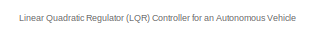
[diagram: root canvas - part 1/3, top center region]
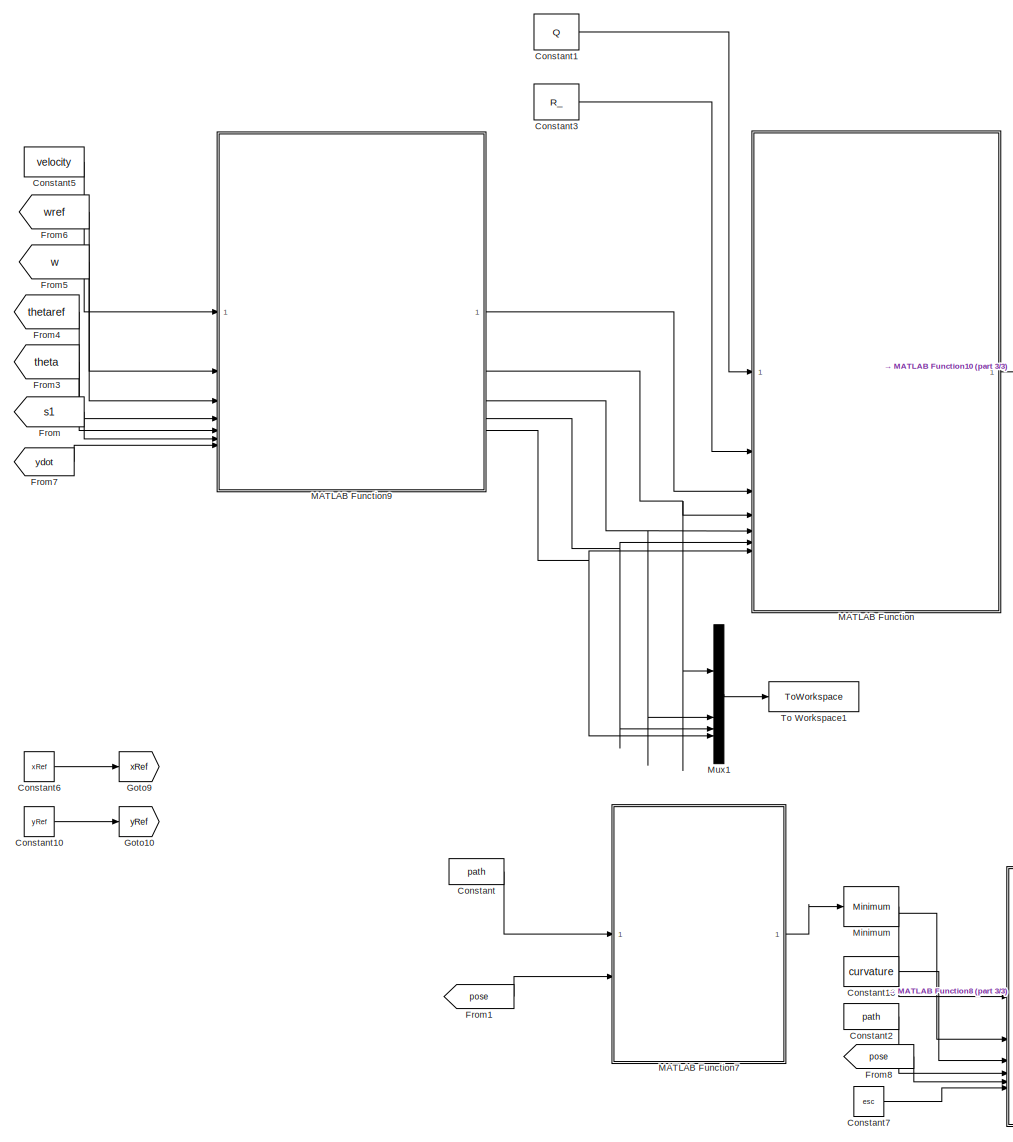
[diagram: root canvas - part 2/3, left side, full height]
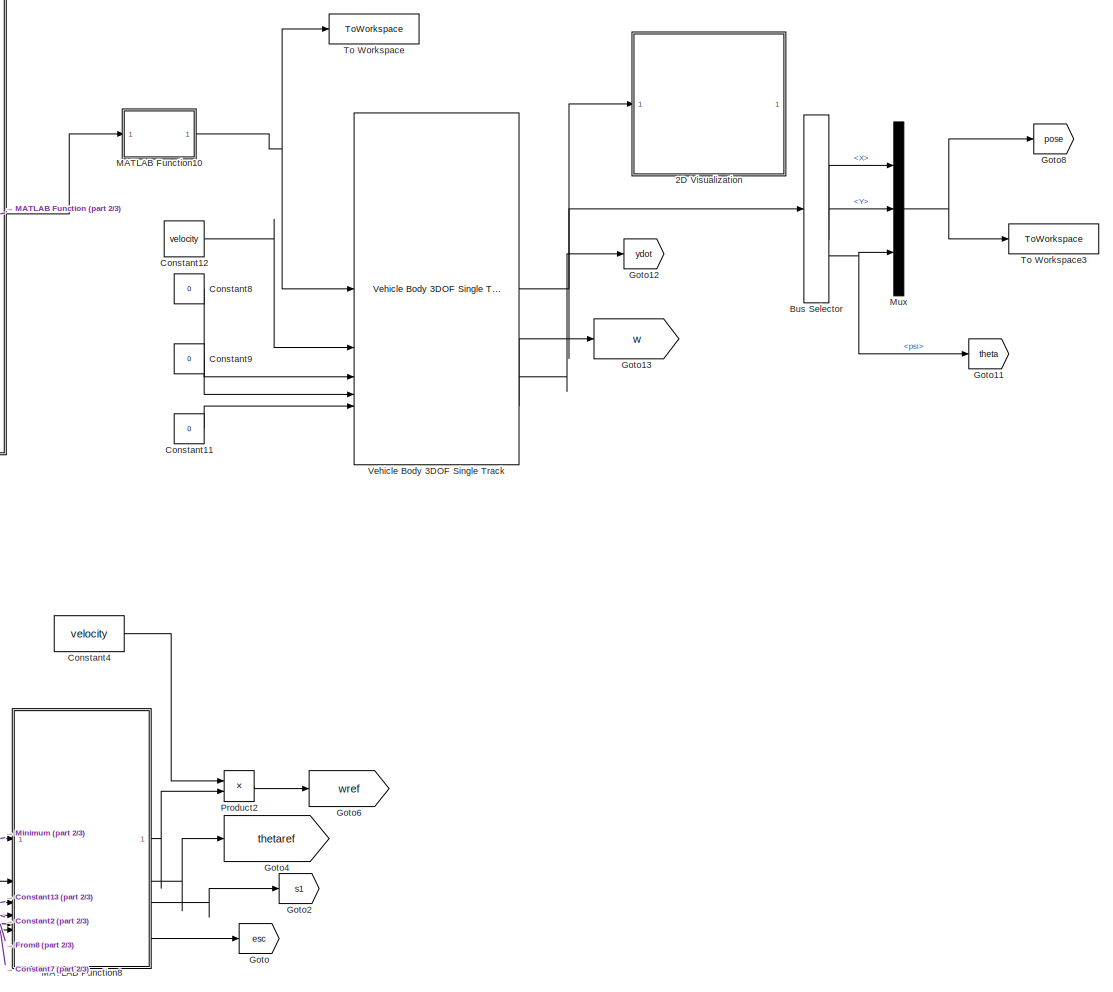
[diagram: root canvas - part 3/3, right side, full height]
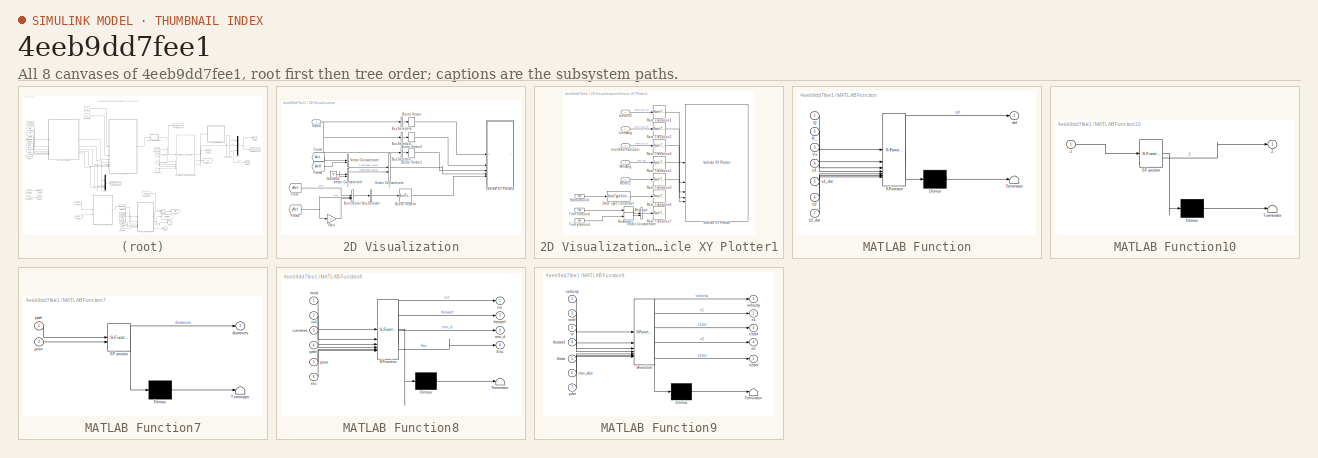
[diagram: thumbnail index - all 8 canvases of the model, root first then tree order]
MODEL slx_4eeb9dd7fee1
KIND model
CONFIG AbsTol = auto
CONFIG EnableMultiTasking = off
CONFIG FixedStep = auto
CONFIG MaxStep = auto
CONFIG MinStep = auto
CONFIG RelTol = 1e-3
CONFIG SampleTimeConstraint = Unconstrained
CONFIG SolverName = ode45
CONFIG StartTime = 0.0
CONFIG StopTime = inf
BLOCK [SubSystem] 2D Visualization
BLOCK [BusCreator] 2D Visualization/Bus Creator
  DisplayOption = bar
  InheritFromInputs = on
  Inputs = 3
BLOCK [BusSelector] 2D Visualization/Bus Selector
  OutputAsBus = on
  OutputSignals = xRef,yRef,signal3
BLOCK [BusSelector] 2D Visualization/Bus Selector1
  OutputAsBus = on
  OutputSignals = InertFrm.Cg.Ang.phi,InertFrm.Cg.Ang.theta,InertFrm.Cg.Ang.psi
BLOCK [BusSelector] 2D Visualization/Bus Selector6
  OutputAsBus = on
  OutputSignals = InertFrm.Geom.Disp.X,InertFrm.Geom.Disp.Y,InertFrm.Geom.Disp.Z
BLOCK [BusSelector] 2D Visualization/Bus Selector7
  OutputAsBus = on
  OutputSignals = InertFrm.Geom.Vel.Xdot,InertFrm.Geom.Vel.Ydot,InertFrm.Geom.Vel.Zdot
BLOCK [BusToVector] 2D Visualization/Bus to Vector
BLOCK [BusToVector] 2D Visualization/Bus to Vector1
BLOCK [BusToVector] 2D Visualization/Bus to Vector2
BLOCK [BusToVector] 2D Visualization/Bus to Vector4
BLOCK [From] 2D Visualization/From
  GotoTag = xRef
BLOCK [From] 2D Visualization/From1
  GotoTag = AnL
BLOCK [From] 2D Visualization/From2
  GotoTag = AnR
BLOCK [From] 2D Visualization/From3
  GotoTag = yRef
BLOCK [Gain] 2D Visualization/Gain
  Gain = 0
BLOCK [Ground] 2D Visualization/Ground3
BLOCK [Inport] 2D Visualization/Inport
BLOCK [Concatenate] 2D Visualization/Vector Concatenate
BLOCK [Concatenate] 2D Visualization/Vector Concatenate1
BLOCK [Concatenate] 2D Visualization/Vector Concatenate2
BLOCK [SubSystem] 2D Visualization/Vehicle XY Plotter1
BLOCK [DataTypeConversion] 2D Visualization/Vehicle XY Plotter1/Data Type Conversion
  OutDataTypeStr = double
  RndMeth = Floor
  SaturateOnIntegerOverflow = off
BLOCK [Inport] 2D Visualization/Vehicle XY Plotter1/InertAng
  Port = 2
BLOCK [Inport] 2D Visualization/Vehicle XY Plotter1/InertXYZ
BLOCK [Inport] 2D Visualization/Vehicle XY Plotter1/InertXdotYdotZdot
  Port = 3
BLOCK [RateTransition] 2D Visualization/Vehicle XY Plotter1/Rate Transition1
  Deterministic = off
  OutPortSampleTime = pltDT
BLOCK [RateTransition] 2D Visualization/Vehicle XY Plotter1/Rate Transition2
  Deterministic = off
  OutPortSampleTime = pltDT
BLOCK [RateTransition] 2D Visualization/Vehicle XY Plotter1/Rate Transition3
  Deterministic = off
  OutPortSampleTime = pltDT
BLOCK [RateTransition] 2D Visualization/Vehicle XY Plotter1/Rate Transition4
  Deterministic = off
  OutPortSampleTime = pltDT
BLOCK [RateTransition] 2D Visualization/Vehicle XY Plotter1/Rate Transition5
  Deterministic = off
  OutPortSampleTime = pltDT
BLOCK [RateTransition] 2D Visualization/Vehicle XY Plotter1/Rate Transition6
  Deterministic = off
  OutPortSampleTime = pltDT
BLOCK [RateTransition] 2D Visualization/Vehicle XY Plotter1/Rate Transition7
  Deterministic = off
  OutPortSampleTime = pltDT
BLOCK [Inport] 2D Visualization/Vehicle XY Plotter1/RefXYZ
  Port = 5
BLOCK [Reshape] 2D Visualization/Vehicle XY Plotter1/Reshape
  OutputDimensionality = Row vector (2-D)
BLOCK [Reshape] 2D Visualization/Vehicle XY Plotter1/Reshape1
  OutputDimensionality = Row vector (2-D)
BLOCK [Ground] 2D Visualization/Vehicle XY Plotter1/Stats Ground
BLOCK [Ground] 2D Visualization/Vehicle XY Plotter1/TireFx Ground
BLOCK [Ground] 2D Visualization/Vehicle XY Plotter1/TireFy Ground
BLOCK [Concatenate] 2D Visualization/Vehicle XY Plotter1/Vector Concatenate
  Mode = Multidimensional array
BLOCK [Reference] 2D Visualization/Vehicle XY Plotter1/Vehicle XY Plotter  REF=vehdynlibviscommon/Vehicle XY Plotter
  SourceBlock = vehdynlibviscommon/Vehicle XY Plotter
  SourceType = Vehicle XY Plotter
BLOCK [Inport] 2D Visualization/Vehicle XY Plotter1/WhlAng
  Port = 4
BLOCK [BusSelector] Bus Selector
  OutputSignals = InertFrm.Cg.Disp.X,InertFrm.Cg.Disp.Y,InertFrm.Cg.Ang.psi
BLOCK [Constant] Constant
  SampleTime = 1/hz
  Value = path
BLOCK [Constant] Constant1
  SampleTime = 1/hz
  Value = Q
BLOCK [Constant] Constant10
  SampleTime = 1/hz
  Value = yRef
BLOCK [Constant] Constant11
  SampleTime = 1/hz
  Value = 0
BLOCK [Constant] Constant12
  SampleTime = 1/hz
  Value = velocity
BLOCK [Constant] Constant13
  SampleTime = 1/hz
  Value = curvature
BLOCK [Constant] Constant2
  SampleTime = 1/hz
  Value = path
BLOCK [Constant] Constant3
  SampleTime = 1/hz
  Value = R_
BLOCK [Constant] Constant4
  SampleTime = 1/hz
  Value = velocity
BLOCK [Constant] Constant5
  SampleTime = 1/hz
  Value = velocity
BLOCK [Constant] Constant6
  SampleTime = 1/hz
  Value = xRef
BLOCK [Constant] Constant7
  SampleTime = 1/hz
  Value = esc
BLOCK [Constant] Constant8
  SampleTime = 1/hz
  Value = 0
BLOCK [Constant] Constant9
  SampleTime = 1/hz
  Value = 0
BLOCK [From] From
  GotoTag = s1
BLOCK [From] From1
  GotoTag = pose
BLOCK [From] From3
  GotoTag = theta
BLOCK [From] From4
  GotoTag = thetaref
BLOCK [From] From5
  GotoTag = w
BLOCK [From] From6
  GotoTag = wref
BLOCK [From] From7
  GotoTag = ydot
BLOCK [From] From8
  GotoTag = pose
BLOCK [Goto] Goto
  GotoTag = esc
BLOCK [Goto] Goto10
  GotoTag = yRef
BLOCK [Goto] Goto11
  GotoTag = theta
BLOCK [Goto] Goto12
  GotoTag = ydot
BLOCK [Goto] Goto13
  GotoTag = w
BLOCK [Goto] Goto2
  GotoTag = s1
BLOCK [Goto] Goto4
  GotoTag = thetaref
BLOCK [Goto] Goto6
  GotoTag = wref
BLOCK [Goto] Goto8
  GotoTag = pose
BLOCK [Goto] Goto9
  GotoTag = xRef
BLOCK [SubSystem] MATLAB Function
  ErrorFcn = Stateflow.Translate.translate
  NameLocation = top
  PermitHierarchicalResolution = ExplicitOnly
  SFBlockType = MATLAB Function
  TreatAsAtomicUnit = on
BLOCK [Demux] MATLAB Function/ Demux 
  Outputs = 1
BLOCK [S-Function] MATLAB Function/ SFunction 
  EnableBusSupport = on
  FunctionName = sf_sfun
  PortCounts = [7 2]
  SFcnIsStateOwnerBlock = off
  SFunctionDeploymentMode = off
  Tag = Stateflow S-Function 2
BLOCK [Terminator] MATLAB Function/ Terminator 
BLOCK [Inport] MATLAB Function/Q
BLOCK [Inport] MATLAB Function/R_
  Port = 2
BLOCK [Inport] MATLAB Function/Vx
  Port = 3
BLOCK [Outport] MATLAB Function/del
BLOCK [Inport] MATLAB Function/e1
  Port = 4
BLOCK [Inport] MATLAB Function/e1_dot
  Port = 5
BLOCK [Inport] MATLAB Function/e2
  Port = 6
BLOCK [Inport] MATLAB Function/e2_dot
  Port = 7
BLOCK [SubSystem] MATLAB Function10
  ErrorFcn = Stateflow.Translate.translate
  LibrarySourceBlock = simulink/User-Defined\nFunctions/MATLAB Function
  PermitHierarchicalResolution = ExplicitOnly
  SFBlockType = MATLAB Function
  TreatAsAtomicUnit = on
BLOCK [Demux] MATLAB Function10/ Demux 
  Outputs = 1
BLOCK [S-Function] MATLAB Function10/ SFunction 
  EnableBusSupport = on
  FunctionName = sf_sfun
  PortCounts = [1 2]
  SFcnIsStateOwnerBlock = off
  SFunctionDeploymentMode = off
  Tag = Stateflow S-Function 11
BLOCK [Terminator] MATLAB Function10/ Terminator 
BLOCK [Outport] MATLAB Function10/Z
BLOCK [Inport] MATLAB Function10/z
BLOCK [SubSystem] MATLAB Function7
  ErrorFcn = Stateflow.Translate.translate
  LibrarySourceBlock = simulink/User-Defined\nFunctions/MATLAB Function
  PermitHierarchicalResolution = ExplicitOnly
  SFBlockType = MATLAB Function
  TreatAsAtomicUnit = on
BLOCK [Demux] MATLAB Function7/ Demux 
  Outputs = 1
BLOCK [S-Function] MATLAB Function7/ SFunction 
  EnableBusSupport = on
  FunctionName = sf_sfun
  PortCounts = [2 2]
  SFcnIsStateOwnerBlock = off
  SFunctionDeploymentMode = off
  Tag = Stateflow S-Function 8
BLOCK [Terminator] MATLAB Function7/ Terminator 
BLOCK [Outport] MATLAB Function7/distances
BLOCK [Inport] MATLAB Function7/path
BLOCK [Inport] MATLAB Function7/pose
  Port = 2
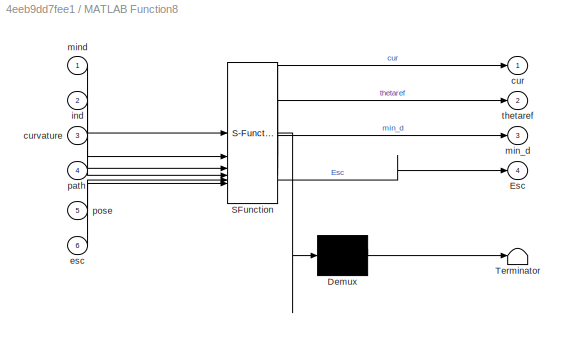
BLOCK [SubSystem] MATLAB Function8
  ErrorFcn = Stateflow.Translate.translate
  LibrarySourceBlock = simulink/User-Defined\nFunctions/MATLAB Function
  PermitHierarchicalResolution = ExplicitOnly
  SFBlockType = MATLAB Function
  TreatAsAtomicUnit = on
BLOCK [Demux] MATLAB Function8/ Demux 
  Outputs = 1
BLOCK [S-Function] MATLAB Function8/ SFunction 
  EnableBusSupport = on
  FunctionName = sf_sfun
  PortCounts = [6 5]
  SFcnIsStateOwnerBlock = off
  SFunctionDeploymentMode = off
  Tag = Stateflow S-Function 9
BLOCK [Terminator] MATLAB Function8/ Terminator 
BLOCK [Outport] MATLAB Function8/Esc
  Port = 4
BLOCK [Outport] MATLAB Function8/cur
BLOCK [Inport] MATLAB Function8/curvature
  Port = 3
BLOCK [Inport] MATLAB Function8/esc
  Port = 6
BLOCK [Inport] MATLAB Function8/ind
  Port = 2
BLOCK [Outport] MATLAB Function8/min_d
  Port = 3
BLOCK [Inport] MATLAB Function8/mind
BLOCK [Inport] MATLAB Function8/path
  Port = 4
BLOCK [Inport] MATLAB Function8/pose
  Port = 5
BLOCK [Outport] MATLAB Function8/thetaref
  Port = 2
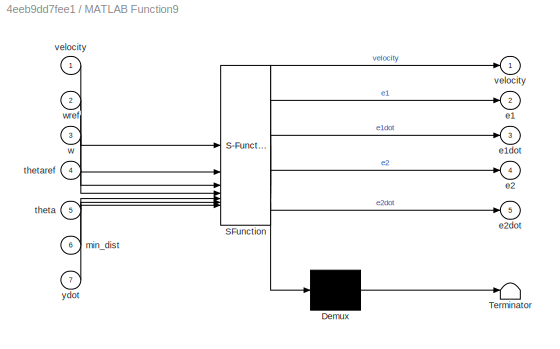
BLOCK [SubSystem] MATLAB Function9
  ErrorFcn = Stateflow.Translate.translate
  LibrarySourceBlock = simulink/User-Defined\nFunctions/MATLAB Function
  PermitHierarchicalResolution = ExplicitOnly
  SFBlockType = MATLAB Function
  TreatAsAtomicUnit = on
BLOCK [Demux] MATLAB Function9/ Demux 
  Outputs = 1
BLOCK [S-Function] MATLAB Function9/ SFunction 
  EnableBusSupport = on
  FunctionName = sf_sfun
  PortCounts = [7 6]
  SFcnIsStateOwnerBlock = off
  SFunctionDeploymentMode = off
  Tag = Stateflow S-Function 10
BLOCK [Terminator] MATLAB Function9/ Terminator 
BLOCK [Outport] MATLAB Function9/e1
  Port = 2
BLOCK [Outport] MATLAB Function9/e1dot
  Port = 3
BLOCK [Outport] MATLAB Function9/e2
  Port = 4
BLOCK [Outport] MATLAB Function9/e2dot
  Port = 5
BLOCK [Inport] MATLAB Function9/min_dist
  Port = 6
BLOCK [Inport] MATLAB Function9/theta
  Port = 5
BLOCK [Inport] MATLAB Function9/thetaref
  Port = 4
BLOCK [Outport] MATLAB Function9/velocity
BLOCK [Inport] MATLAB Function9/velocity 
BLOCK [Inport] MATLAB Function9/w
  Port = 3
BLOCK [Inport] MATLAB Function9/wref
  Port = 2
BLOCK [Inport] MATLAB Function9/ydot
  Port = 7
BLOCK [Reference] Minimum  REF=dspstat3/Minimum
  SourceBlock = dspstat3/Minimum
  SourceType = Minimum
  UserDataPersistent = on
BLOCK [Mux] Mux
  DisplayOption = bar
  Inputs = 3
BLOCK [Mux] Mux1
  DisplayOption = bar
BLOCK [Product] Product2
BLOCK [ToWorkspace] To Workspace
  FixptAsFi = on
  MaxDataPoints = inf
  SampleTime = -1
  SaveFormat = Structure With Time
  VariableName = steering
BLOCK [ToWorkspace] To Workspace1
  FixptAsFi = on
  MaxDataPoints = inf
  SampleTime = -1
  SaveFormat = Structure With Time
  VariableName = states
BLOCK [ToWorkspace] To Workspace3
  FixptAsFi = on
  MaxDataPoints = inf
  SampleTime = -1
  SaveFormat = Structure With Time
  VariableName = pose1
BLOCK [Reference] Vehicle Body 3DOF Single Track  REF=autolibshared/Vehicle Body 3DOF Single Track
  SourceBlock = autolibshared/Vehicle Body 3DOF Single Track
  SourceType = Vehicle Body 3DOF Lateral
ANNOTATION (root): Linear Quadratic Regulator (LQR) Controller for an Autonomous Vehicle
LINE 2D Visualization/Bus Creator:1 -> 2D Visualization/Bus Selector:1
LINE 2D Visualization/Bus Selector1:1 -> 2D Visualization/Bus to Vector2:1
LINE 2D Visualization/Bus Selector6:1 -> 2D Visualization/Bus to Vector:1
LINE 2D Visualization/Bus Selector7:1 -> 2D Visualization/Bus to Vector1:1
LINE 2D Visualization/Bus Selector:1 -> 2D Visualization/Bus to Vector4:1
LINE 2D Visualization/Bus to Vector1:1 -> 2D Visualization/Vehicle XY Plotter1:3
LINE 2D Visualization/Bus to Vector2:1 -> 2D Visualization/Vehicle XY Plotter1:2
LINE 2D Visualization/Bus to Vector4:1 -> 2D Visualization/Vehicle XY Plotter1:5
LINE 2D Visualization/Bus to Vector:1 -> 2D Visualization/Vehicle XY Plotter1:1
LINE 2D Visualization/From1:1 -> 2D Visualization/Vector Concatenate:1
LINE 2D Visualization/From2:1 -> 2D Visualization/Vector Concatenate:2
NET 2D Visualization/From3:1 -> 2D Visualization/Bus Creator:2, 2D Visualization/Gain:1
LINE 2D Visualization/From:1 -> 2D Visualization/Bus Creator:1
LINE 2D Visualization/Gain:1 -> 2D Visualization/Bus Creator:3
NET 2D Visualization/Ground3:1 -> 2D Visualization/Vector Concatenate2:1, 2D Visualization/Vector Concatenate2:2
NET 2D Visualization/Inport:1 -> 2D Visualization/Bus Selector1:1, 2D Visualization/Bus Selector6:1, 2D Visualization/Bus Selector7:1
LINE 2D Visualization/Vector Concatenate1:1 -> 2D Visualization/Vehicle XY Plotter1:4
LINE 2D Visualization/Vector Concatenate2:1 -> 2D Visualization/Vector Concatenate1:2
LINE 2D Visualization/Vector Concatenate:1 -> 2D Visualization/Vector Concatenate1:1
LINE 2D Visualization/Vehicle XY Plotter1/Data Type Conversion:1 -> 2D Visualization/Vehicle XY Plotter1/Rate Transition6:1
LINE 2D Visualization/Vehicle XY Plotter1/InertAng:1 -> 2D Visualization/Vehicle XY Plotter1/Rate Transition2:1
LINE 2D Visualization/Vehicle XY Plotter1/InertXYZ:1 -> 2D Visualization/Vehicle XY Plotter1/Rate Transition1:1
LINE 2D Visualization/Vehicle XY Plotter1/InertXdotYdotZdot:1 -> 2D Visualization/Vehicle XY Plotter1/Rate Transition4:1
LINE 2D Visualization/Vehicle XY Plotter1/Rate Transition1:1 -> 2D Visualization/Vehicle XY Plotter1/Vehicle XY Plotter:1
LINE 2D Visualization/Vehicle XY Plotter1/Rate Transition2:1 -> 2D Visualization/Vehicle XY Plotter1/Vehicle XY Plotter:2
LINE 2D Visualization/Vehicle XY Plotter1/Rate Transition3:1 -> 2D Visualization/Vehicle XY Plotter1/Vehicle XY Plotter:5
LINE 2D Visualization/Vehicle XY Plotter1/Rate Transition4:1 -> 2D Visualization/Vehicle XY Plotter1/Vehicle XY Plotter:3
LINE 2D Visualization/Vehicle XY Plotter1/Rate Transition5:1 -> 2D Visualization/Vehicle XY Plotter1/Vehicle XY Plotter:4
LINE 2D Visualization/Vehicle XY Plotter1/RefXYZ:1 -> 2D Visualization/Vehicle XY Plotter1/Rate Transition3:1
LINE 2D Visualization/Vehicle XY Plotter1/Reshape1:1 -> 2D Visualization/Vehicle XY Plotter1/Vector Concatenate:2
LINE 2D Visualization/Vehicle XY Plotter1/Reshape:1 -> 2D Visualization/Vehicle XY Plotter1/Vector Concatenate:1
LINE 2D Visualization/Vehicle XY Plotter1/Stats Ground:1 -> 2D Visualization/Vehicle XY Plotter1/Data Type Conversion:1
LINE 2D Visualization/Vehicle XY Plotter1/TireFx Ground:1 -> 2D Visualization/Vehicle XY Plotter1/Reshape:1
LINE 2D Visualization/Vehicle XY Plotter1/TireFy Ground:1 -> 2D Visualization/Vehicle XY Plotter1/Reshape1:1
LINE 2D Visualization/Vehicle XY Plotter1/Vector Concatenate:1 -> 2D Visualization/Vehicle XY Plotter1/Rate Transition7:1
LINE 2D Visualization/Vehicle XY Plotter1/WhlAng:1 -> 2D Visualization/Vehicle XY Plotter1/Rate Transition5:1
LINE Bus Selector:1 -> Mux:1
LINE Bus Selector:2 -> Mux:2
NET Bus Selector:3 -> Goto11:1, Mux:3
LINE Constant10:1 -> Goto10:1
LINE Constant11:1 -> Vehicle Body 3DOF Single Track:5
LINE Constant12:1 -> Vehicle Body 3DOF Single Track:2
LINE Constant13:1 -> MATLAB Function8:3
LINE Constant1:1 -> MATLAB Function:1
LINE Constant2:1 -> MATLAB Function8:4
LINE Constant3:1 -> MATLAB Function:2
LINE Constant4:1 -> Product2:1
LINE Constant5:1 -> MATLAB Function9:1
LINE Constant6:1 -> Goto9:1
LINE Constant7:1 -> MATLAB Function8:6
LINE Constant8:1 -> Vehicle Body 3DOF Single Track:3
LINE Constant9:1 -> Vehicle Body 3DOF Single Track:4
LINE Constant:1 -> MATLAB Function7:1
LINE From1:1 -> MATLAB Function7:2
LINE From3:1 -> MATLAB Function9:5
LINE From4:1 -> MATLAB Function9:4
LINE From5:1 -> MATLAB Function9:3
LINE From6:1 -> MATLAB Function9:2
LINE From7:1 -> MATLAB Function9:7
LINE From8:1 -> MATLAB Function8:5
LINE From:1 -> MATLAB Function9:6
NET MATLAB Function10:1 -> To Workspace:1, Vehicle Body 3DOF Single Track:1
LINE MATLAB Function7:1 -> Minimum:1
LINE MATLAB Function8:1 -> Product2:2
LINE MATLAB Function8:2 -> Goto4:1
LINE MATLAB Function8:3 -> Goto2:1
LINE MATLAB Function8:4 -> Goto:1
LINE MATLAB Function9:1 -> MATLAB Function:3
NET MATLAB Function9:2 -> MATLAB Function:4, Mux1:1
NET MATLAB Function9:3 -> MATLAB Function:5, Mux1:2
NET MATLAB Function9:4 -> MATLAB Function:6, Mux1:3
NET MATLAB Function9:5 -> MATLAB Function:7, Mux1:4
LINE MATLAB Function:1 -> MATLAB Function10:1
LINE Minimum:1 -> MATLAB Function8:1
LINE Minimum:2 -> MATLAB Function8:2
LINE Mux1:1 -> To Workspace1:1
NET Mux:1 -> Goto8:1, To Workspace3:1
LINE Product2:1 -> Goto6:1
NET Vehicle Body 3DOF Single Track:1 -> 2D Visualization:1, Bus Selector:1
LINE Vehicle Body 3DOF Single Track:3 -> Goto12:1
LINE Vehicle Body 3DOF Single Track:5 -> Goto13:1
note: NET lines group one-source signal fan-out (src -> all destinations, sorted); 1:1 wires keep LINE
CHART MATLAB Function states=1 transitions=1
  STATE_LABEL 'eML_blk_kernel()'
  STATE_LABEL 'SCRIPT:\nfunction del = steering_angle(Q,R_,Vx,e1,e1_dot, e2, e2_dot)\n\n% defining vehicle parameters\na = 0.330/2;     % m ,distance from CoG to front axel\nb = 0.330/2;     % m ,distance from CoG to rear axel\nIz = 5*0.1^2;  % kg-m^2 ,Yaw rate of inertia around CoG\nm = 5;     % kg ,mass of the vehicle \nCf = 8354;   % N/rad ,cornering stiffness of the front axel\nCr = 8310;   % N/rad ,cornering stiffne...<+646ch>'
CHART MATLAB Function7 states=1 transitions=1
  STATE_LABEL 'eML_blk_kernel()'
  STATE_LABEL 'SCRIPT:\nfunction distances  = nearestPose(path, pose)\n    % path: Nx3 matrix containing the x, y, and heading of the waypoints in the path\n    % current_pose: 1x3 vector containing the x, y, and heading of the current pose of the vehicle\n    % nearest_pose: 1x3 vector containing the x, y, and heading of the nearest pose on the path\n    % nearest_index: index of the nearest pose on the path\n    \n  ...<+356ch>'
CHART MATLAB Function8 states=1 transitions=1
  STATE_LABEL 'eML_blk_kernel()'
  STATE_LABEL 'SCRIPT:\nfunction [cur,thetaref,min_d,Esc] = fcn(mind,ind,curvature,path,pose,esc)\n\ncur = curvature(ind);\nthetaref = path(ind,3);\n\n% cross track error\n\ncurrent_position = [pose(1);pose(2)];\nnext_waypoint = [path(ind+1,1);path(ind+1,2)];\n\nwaypoint_vector = next_waypoint - current_position;\nnormal_vector = [-waypoint_vector(2), waypoint_vector(1)];\nvehicle_heading = [cos(pose(3)), sin(pose(3))];\ndot_...<+379ch>'
CHART MATLAB Function9 states=1 transitions=1
  STATE_LABEL 'eML_blk_kernel()'
  STATE_LABEL 'SCRIPT:\nfunction [velocity,e1,e1dot,e2,e2dot]= state(velocity,wref,w,thetaref,theta,min_dist,ydot)\n\n% rate change of heading error\n e2dot = w - wref;\n\n% heading error \n e2    = theta -thetaref;\nif e2 <= -pi\n    e2 = theta + (pi-thetaref);\nelseif e2 >= pi\n    e2 = -(pi-theta+thetaref);\nend\n\n% cross track error\n e1 = min_dist;\n e1dot = ydot+velocity*(e2);\n\n\nend'
CHART MATLAB Function10 states=1 transitions=1
  STATE_LABEL 'eML_blk_kernel()'
  STATE_LABEL 'SCRIPT:\nfunction Z = fcn(z)\n\nif (z > pi/6)\n    z = pi/6;\nelseif (z < -pi/6)\n    z = -pi/6;\nelse\n    z =z;\nend\n\nZ = z;\nend\n'
CHART  states=0 transitions=0
CHART  states=0 transitions=0
CHART  states=0 transitions=0
CHART  states=0 transitions=0
CHART  states=0 transitions=0
